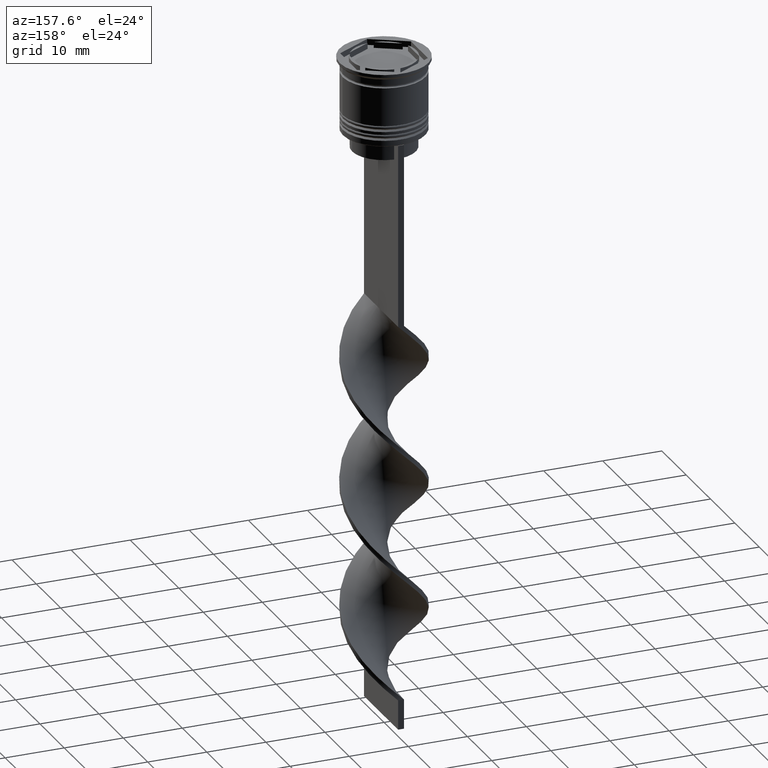
[diagram: clean part render]
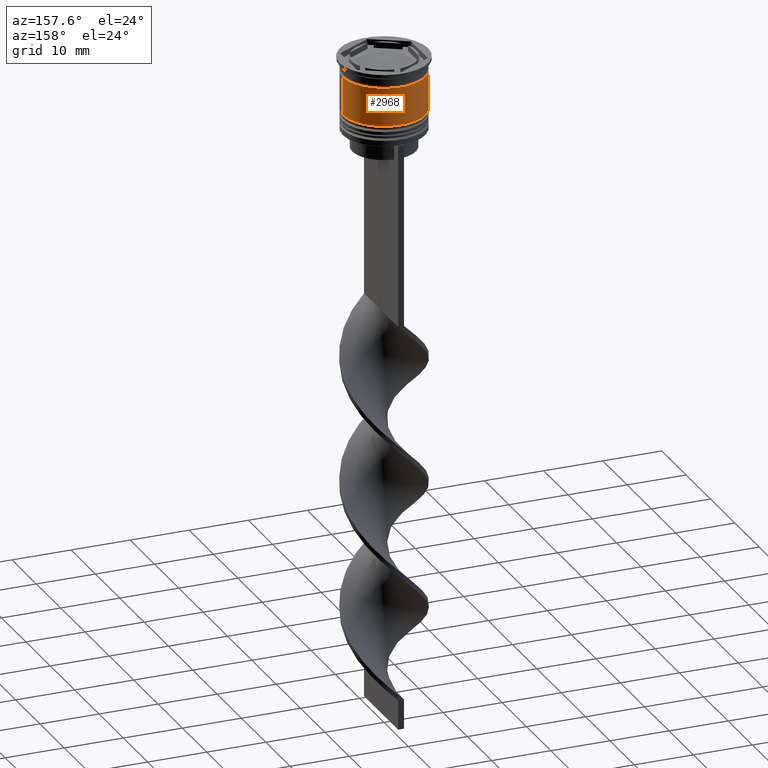
[diagram: same view with one face highlighted and labeled with its STEP entity id]
A machine part, auxiliary view. The second image highlights one B-rep face of the part: STEP entity #2968.
In plain terms, the highlighted cylindrical surface (partial cylindrical patch) has radius 7 mm, axis along (-0, -0, 1).
Its self-contained STEP definition (entity closure, byte-faithful):
#106 = ORIENTED_EDGE ( 'NONE', *, *, #1362, .F. ) ;
#251 = ORIENTED_EDGE ( 'NONE', *, *, #696, .T. ) ;
#396 = DIRECTION ( 'NONE',  ( -0.000000000000000000, -0.000000000000000000, 1.000000000000000000 ) ) ;
#397 = CARTESIAN_POINT ( 'NONE',  ( 0.000000000000000000, 0.000000000000000000, -9.000000000000001776 ) ) ;
#450 = DIRECTION ( 'NONE',  ( 1.000000000000000000, 0.000000000000000000, 0.000000000000000000 ) ) ;
#506 = CARTESIAN_POINT ( 'NONE',  ( 0.000000000000000000, 0.000000000000000000, -2.500000000000000444 ) ) ;
#696 = EDGE_CURVE ( 'NONE', #1869, #3324, #1011, .T. ) ;
#771 = VERTEX_POINT ( 'NONE', #977 ) ;
#800 = VECTOR ( 'NONE', #2086, 1000.000000000000000 ) ;
#837 = LINE ( 'NONE', #1677, #1876 ) ;
#856 = FACE_OUTER_BOUND ( 'NONE', #2849, .T. ) ;
#977 = CARTESIAN_POINT ( 'NONE',  ( -6.999999999999997335, 8.572527594031471218E-16, -2.500000000000000444 ) ) ;
#1011 = CIRCLE ( 'NONE', #3214, 7.000000000000000888 ) ;
#1129 = EDGE_CURVE ( 'NONE', #3324, #771, #837, .T. ) ;
#1362 = EDGE_CURVE ( 'NONE', #3101, #771, #2166, .T. ) ;
#1438 = CYLINDRICAL_SURFACE ( 'NONE', #2643, 6.999999999999999112 ) ;
#1677 = CARTESIAN_POINT ( 'NONE',  ( -6.999999999999999112, 8.572527594031472204E-16, 0.000000000000000000 ) ) ;
#1750 = AXIS2_PLACEMENT_3D ( 'NONE', #506, #2463, #450 ) ;
#1869 = VERTEX_POINT ( 'NONE', #2616 ) ;
#1876 = VECTOR ( 'NONE', #2224, 1000.000000000000000 ) ;
#1920 = CARTESIAN_POINT ( 'NONE',  ( -7.000000000000000888, 8.572527594031474176E-16, -9.000000000000001776 ) ) ;
#2086 = DIRECTION ( 'NONE',  ( -0.000000000000000000, -0.000000000000000000, 1.000000000000000000 ) ) ;
#2166 = CIRCLE ( 'NONE', #1750, 6.999999999999997335 ) ;
#2224 = DIRECTION ( 'NONE',  ( -0.000000000000000000, -0.000000000000000000, 1.000000000000000000 ) ) ;
#2375 = CARTESIAN_POINT ( 'NONE',  ( 6.999999999999997335, 0.000000000000000000, -2.500000000000000444 ) ) ;
#2414 = LINE ( 'NONE', #3217, #800 ) ;
#2463 = DIRECTION ( 'NONE',  ( -0.000000000000000000, -0.000000000000000000, 1.000000000000000000 ) ) ;
#2577 = DIRECTION ( 'NONE',  ( 1.000000000000000000, 0.000000000000000000, 0.000000000000000000 ) ) ;
#2616 = CARTESIAN_POINT ( 'NONE',  ( 7.000000000000000888, 0.000000000000000000, -9.000000000000001776 ) ) ;
#2643 = AXIS2_PLACEMENT_3D ( 'NONE', #2846, #396, #2577 ) ;
#2846 = CARTESIAN_POINT ( 'NONE',  ( 0.000000000000000000, 0.000000000000000000, 0.000000000000000000 ) ) ;
#2849 = EDGE_LOOP ( 'NONE', ( #251, #3273, #106, #3221 ) ) ;
#2946 = DIRECTION ( 'NONE',  ( -0.000000000000000000, -0.000000000000000000, 1.000000000000000000 ) ) ;
#2968 = ADVANCED_FACE ( 'NONE', ( #856 ), #1438, .T. ) ;
#3101 = VERTEX_POINT ( 'NONE', #2375 ) ;
#3214 = AXIS2_PLACEMENT_3D ( 'NONE', #397, #2946, #3478 ) ;
#3217 = CARTESIAN_POINT ( 'NONE',  ( 6.999999999999999112, 0.000000000000000000, 0.000000000000000000 ) ) ;
#3221 = ORIENTED_EDGE ( 'NONE', *, *, #3348, .F. ) ;
#3273 = ORIENTED_EDGE ( 'NONE', *, *, #1129, .T. ) ;
#3324 = VERTEX_POINT ( 'NONE', #1920 ) ;
#3348 = EDGE_CURVE ( 'NONE', #1869, #3101, #2414, .T. ) ;
#3478 = DIRECTION ( 'NONE',  ( 1.000000000000000000, 0.000000000000000000, 0.000000000000000000 ) ) ;